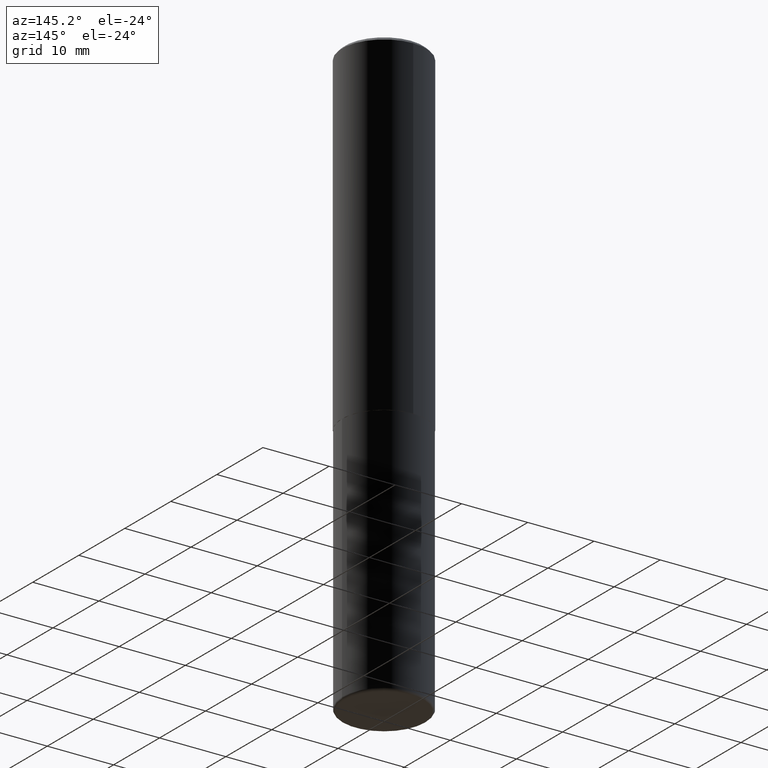
[diagram: clean part render]
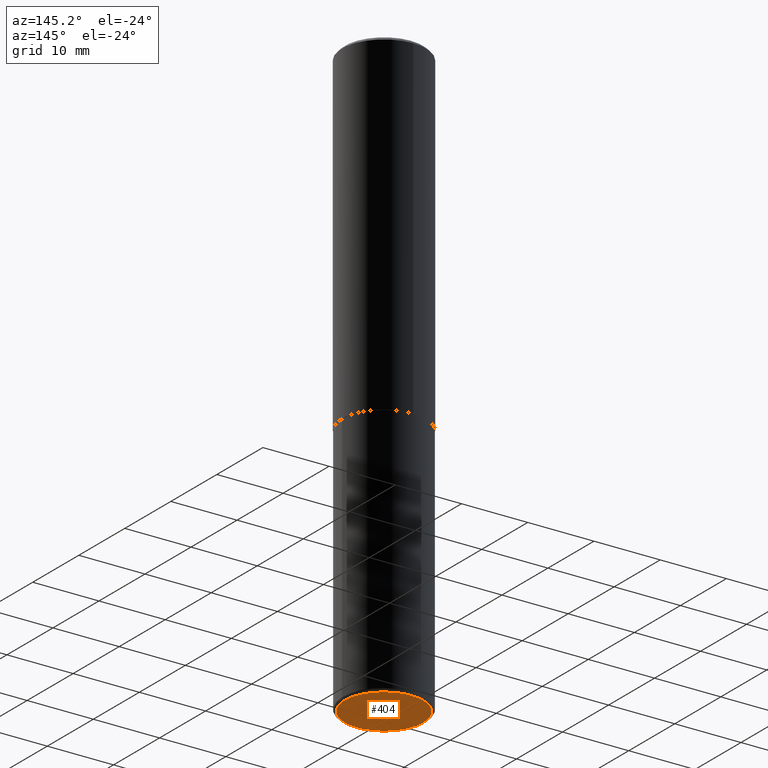
[diagram: same view with one face highlighted and labeled with its STEP entity id]
A machine part, auxiliary view. The second image highlights one B-rep face of the part: STEP entity #404.
In plain terms, the highlighted planar face has unit normal (0, -0, -1).
Its self-contained STEP definition (entity closure, byte-faithful):
#4 = EDGE_LOOP ( 'NONE', ( #153, #309 ) ) ;
#13 = CARTESIAN_POINT ( 'NONE',  ( 8.559140821647976968E-29, -1.222018468595100619E-14, -3.499999999999999112 ) ) ;
#17 = AXIS2_PLACEMENT_3D ( 'NONE', #108, #339, #306 ) ;
#22 = DIRECTION ( 'NONE',  ( -1.000000000000000000, 6.982962677686265922E-15, -4.876176775795935793E-29 ) ) ;
#40 = DIRECTION ( 'NONE',  ( -2.445468806185136597E-29, 3.491481338843145583E-15, 1.000000000000000000 ) ) ;
#46 = EDGE_CURVE ( 'NONE', #330, #311, #371, .T. ) ;
#108 = CARTESIAN_POINT ( 'NONE',  ( 8.559140821647976968E-29, -1.222018468595100619E-14, -3.499999999999999112 ) ) ;
#143 = CARTESIAN_POINT ( 'NONE',  ( 1.424147052658787775E-28, -4.082765130355326584E-15, -3.499999999999999112 ) ) ;
#153 = ORIENTED_EDGE ( 'NONE', *, *, #241, .F. ) ;
#169 = CARTESIAN_POINT ( 'NONE',  ( 0.2349999999999999867, -1.386118091520728107E-14, -3.499999999999999112 ) ) ;
#190 = DIRECTION ( 'NONE',  ( 1.000000000000000000, -6.982962677686271444E-15, 0.000000000000000000 ) ) ;
#195 = CIRCLE ( 'NONE', #17, 0.2349999999999999867 ) ;
#241 = EDGE_CURVE ( 'NONE', #311, #330, #195, .T. ) ;
#244 = AXIS2_PLACEMENT_3D ( 'NONE', #143, #248, #22 ) ;
#245 = PLANE ( 'NONE',  #244 ) ;
#248 = DIRECTION ( 'NONE',  ( 2.438088387897960049E-29, -3.491481338843145188E-15, -1.000000000000000000 ) ) ;
#270 = CARTESIAN_POINT ( 'NONE',  ( -0.2349999999999999867, -1.047093244169144191E-14, -3.499999999999999112 ) ) ;
#306 = DIRECTION ( 'NONE',  ( 1.000000000000000000, -6.982962677686271444E-15, 0.000000000000000000 ) ) ;
#308 = FACE_OUTER_BOUND ( 'NONE', #4, .T. ) ;
#309 = ORIENTED_EDGE ( 'NONE', *, *, #46, .F. ) ;
#311 = VERTEX_POINT ( 'NONE', #169 ) ;
#328 = AXIS2_PLACEMENT_3D ( 'NONE', #13, #40, #190 ) ;
#330 = VERTEX_POINT ( 'NONE', #270 ) ;
#339 = DIRECTION ( 'NONE',  ( -2.445468806185136597E-29, 3.491481338843145583E-15, 1.000000000000000000 ) ) ;
#371 = CIRCLE ( 'NONE', #328, 0.2349999999999999867 ) ;
#404 = ADVANCED_FACE ( 'NONE', ( #308 ), #245, .T. ) ;